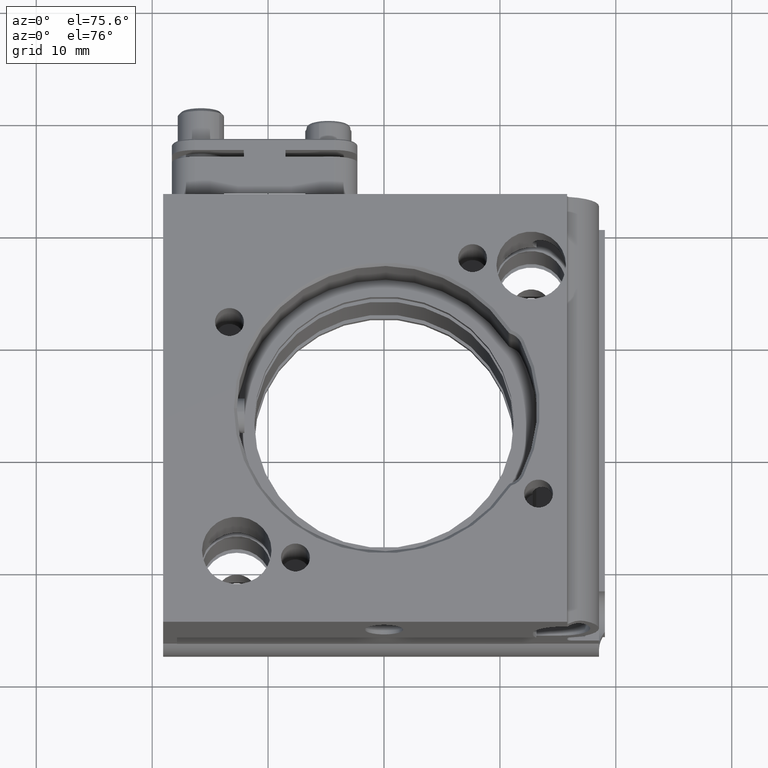
[diagram: clean part render]
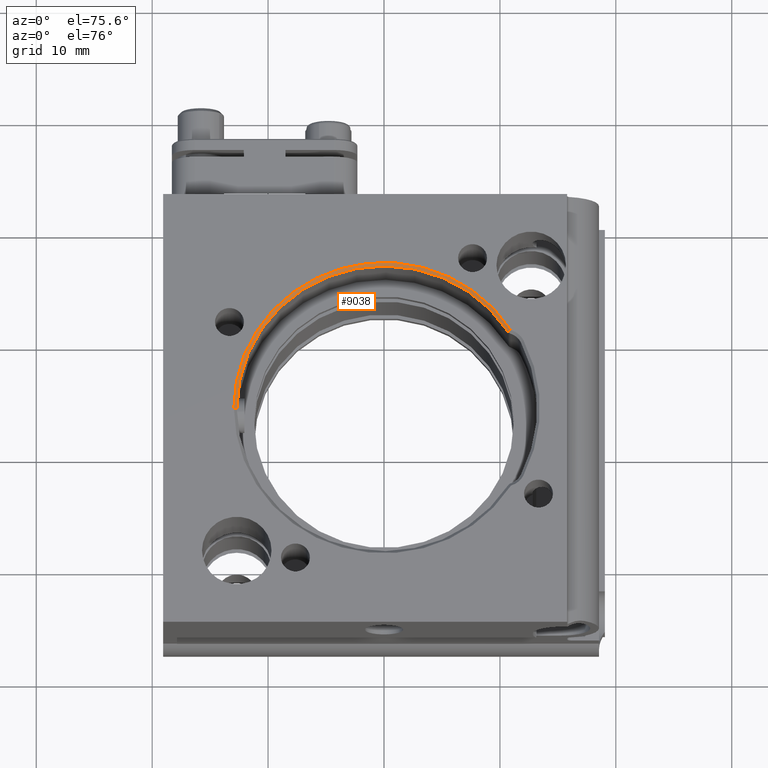
[diagram: same view with one face highlighted and labeled with its STEP entity id]
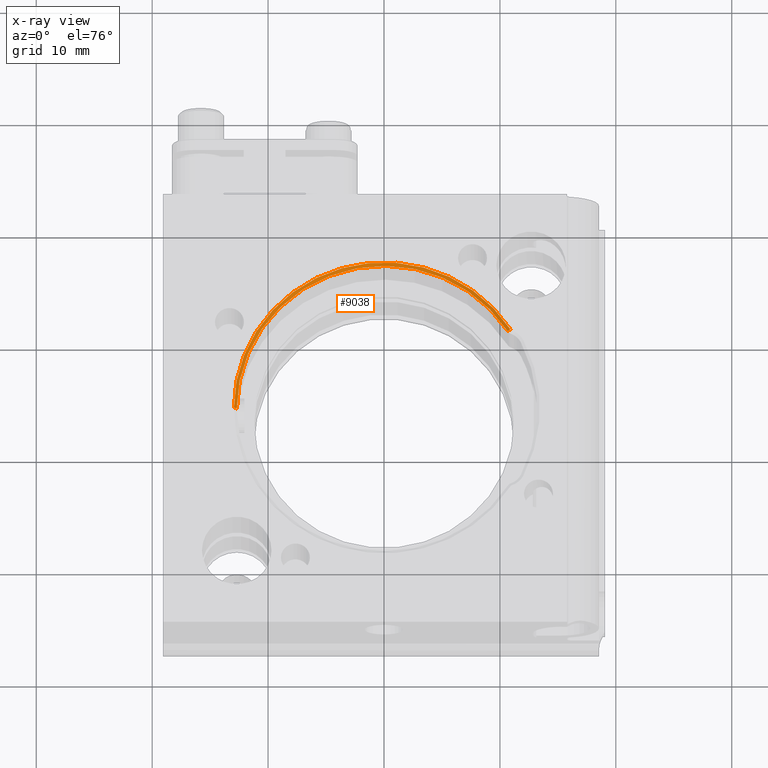
[diagram: x-ray of the same camera — body ghosted, the highlighted face saturated]
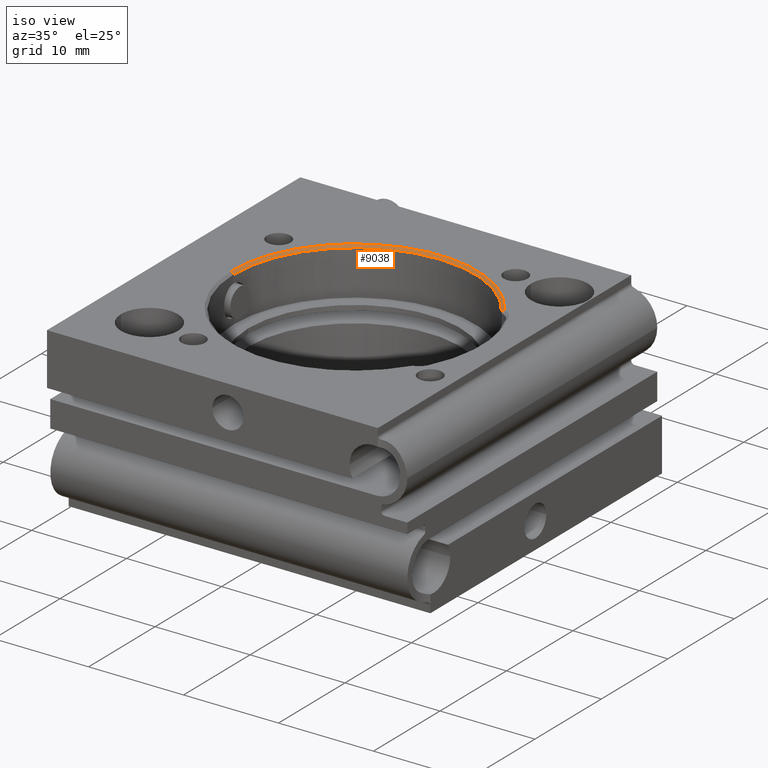
[diagram: same view with one face highlighted and labeled with its STEP entity id]
A machine part, auxiliary view. The second image highlights one B-rep face of the part: STEP entity #9038.
The next image is the same camera in x-ray: the body ghosted, the highlighted face saturated — about 0% of this face is hidden behind the body in this view.
A second angle (iso view) of the same face is appended — the face is thin or edge-on in the first view.
In plain terms, the highlighted conical surface has half-angle 45 deg.
Its self-contained STEP definition (entity closure, byte-faithful):
#43 = FACE_OUTER_BOUND ( 'NONE', #3774, .T. ) ;
#242 = VECTOR ( 'NONE', #7197, 1000.000000000000000 ) ;
#450 = VERTEX_POINT ( 'NONE', #7451 ) ;
#880 = CARTESIAN_POINT ( 'NONE',  ( 10.68890632383393857, 6.858373101567523555, 8.749999999999991118 ) ) ;
#996 = DIRECTION ( 'NONE',  ( 0.5951337122087186904, 0.3818584352776219770, 0.7071067811865449082 ) ) ;
#1156 = CARTESIAN_POINT ( 'NONE',  ( -8.088905766426381825E-32, 4.857225732735053948E-16, 8.749999999999991118 ) ) ;
#1262 = DIRECTION ( 'NONE',  ( -9.244463733059294530E-33, 5.551115123125756201E-17, 1.000000000000000000 ) ) ;
#1315 = ORIENTED_EDGE ( 'NONE', *, *, #7008, .F. ) ;
#1344 = DIRECTION ( 'NONE',  ( 9.244463733059294530E-33, -5.551115123125756201E-17, -1.000000000000000000 ) ) ;
#1545 = ORIENTED_EDGE ( 'NONE', *, *, #7611, .T. ) ;
#1781 = DIRECTION ( 'NONE',  ( -9.244463733059294530E-33, 5.551115123125756201E-17, 1.000000000000000000 ) ) ;
#2548 = VERTEX_POINT ( 'NONE', #4589 ) ;
#3168 = AXIS2_PLACEMENT_3D ( 'NONE', #6247, #1344, #7754 ) ;
#3313 = CONICAL_SURFACE ( 'NONE', #8295, 12.69999999999999929, 0.7853981633974552734 ) ;
#3707 = DIRECTION ( 'NONE',  ( -1.000000000000000000, -4.496403249731884778E-15, 0.0000000000000000000 ) ) ;
#3774 = EDGE_LOOP ( 'NONE', ( #9683, #6825, #1545, #1315 ) ) ;
#4050 = CIRCLE ( 'NONE', #3168, 12.95000000000001172 ) ;
#4415 = CARTESIAN_POINT ( 'NONE',  ( -12.69999999999999929, -5.661859869832141688E-14, 8.749999999999991118 ) ) ;
#4589 = CARTESIAN_POINT ( 'NONE',  ( -12.95000000000001172, -5.772882172294661760E-14, 9.000000000000000000 ) ) ;
#5238 = VECTOR ( 'NONE', #996, 999.9999999999998863 ) ;
#5902 = VERTEX_POINT ( 'NONE', #9317 ) ;
#6239 = VERTEX_POINT ( 'NONE', #7777 ) ;
#6247 = CARTESIAN_POINT ( 'NONE',  ( -8.320017359752855601E-32, 4.996003610813203446E-16, 9.000000000000000000 ) ) ;
#6269 = LINE ( 'NONE', #4415, #242 ) ;
#6825 = ORIENTED_EDGE ( 'NONE', *, *, #7789, .F. ) ;
#7008 = EDGE_CURVE ( 'NONE', #2548, #450, #4050, .T. ) ;
#7197 = DIRECTION ( 'NONE',  ( -0.7071067811865524577, -3.140184917367572717E-15, 0.7071067811865426878 ) ) ;
#7451 = CARTESIAN_POINT ( 'NONE',  ( 10.89931786564169869, 6.993380446086573166, 9.000000000000000000 ) ) ;
#7477 = LINE ( 'NONE', #880, #5238 ) ;
#7611 = EDGE_CURVE ( 'NONE', #6239, #450, #7477, .T. ) ;
#7754 = DIRECTION ( 'NONE',  ( -1.000000000000000000, -4.496403249731883989E-15, 0.0000000000000000000 ) ) ;
#7777 = CARTESIAN_POINT ( 'NONE',  ( 10.68890632383393680, 6.858373101567522667, 8.749999999999991118 ) ) ;
#7789 = EDGE_CURVE ( 'NONE', #6239, #5902, #10517, .T. ) ;
#8295 = AXIS2_PLACEMENT_3D ( 'NONE', #9170, #1781, #9964 ) ;
#8643 = AXIS2_PLACEMENT_3D ( 'NONE', #1156, #1262, #3707 ) ;
#9038 = ADVANCED_FACE ( 'NONE', ( #43 ), #3313, .F. ) ;
#9170 = CARTESIAN_POINT ( 'NONE',  ( -8.088905766426381825E-32, 4.857225732735053948E-16, 8.749999999999991118 ) ) ;
#9317 = CARTESIAN_POINT ( 'NONE',  ( -12.69999999999999929, -5.717371021063421603E-14, 8.749999999999991118 ) ) ;
#9683 = ORIENTED_EDGE ( 'NONE', *, *, #9738, .F. ) ;
#9738 = EDGE_CURVE ( 'NONE', #5902, #2548, #6269, .T. ) ;
#9964 = DIRECTION ( 'NONE',  ( -1.000000000000000000, -4.496403249731884778E-15, 0.0000000000000000000 ) ) ;
#10517 = CIRCLE ( 'NONE', #8643, 12.69999999999999929 ) ;